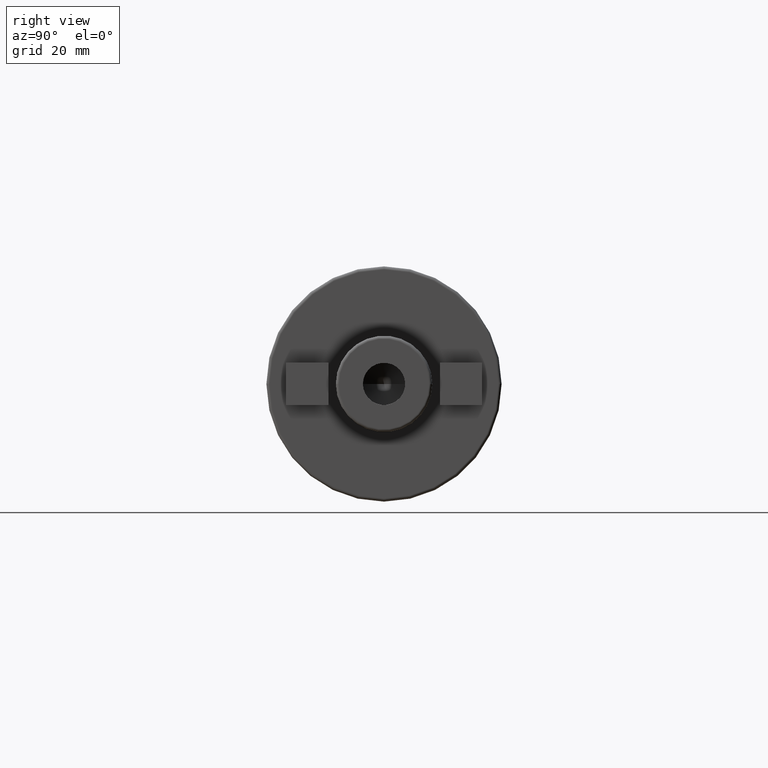
[diagram: clean part render]
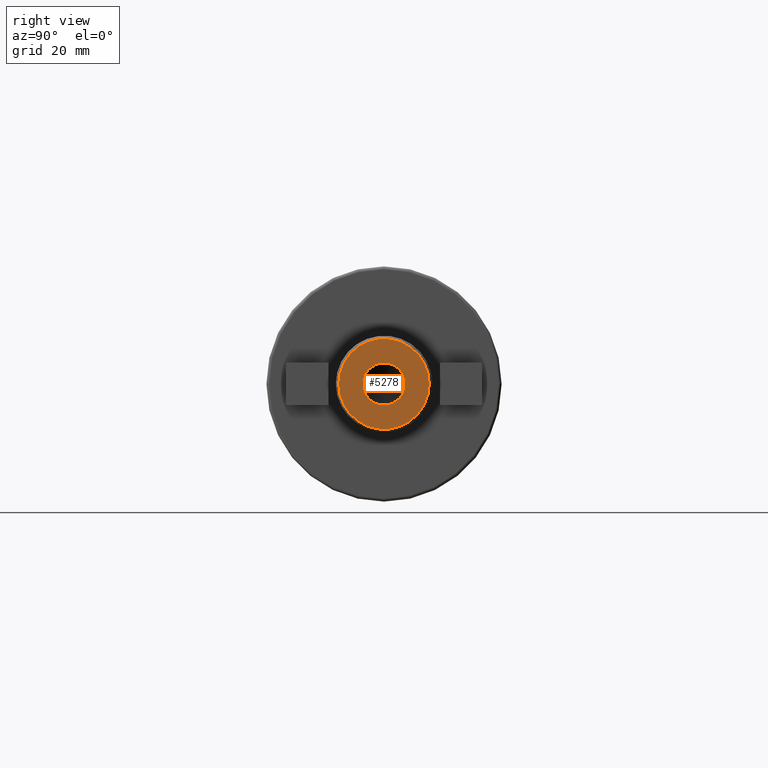
[diagram: same view with one face highlighted and labeled with its STEP entity id]
A machine part, right view. The second image highlights one B-rep face of the part: STEP entity #5278.
In plain terms, the highlighted planar face has unit normal (1, 0, 0).
Its self-contained STEP definition (entity closure, byte-faithful):
#1649=CARTESIAN_POINT('',(1.84E2,0.E0,0.E0));
#1650=DIRECTION('',(-1.E0,0.E0,0.E0));
#1651=DIRECTION('',(0.E0,1.E0,0.E0));
#1652=AXIS2_PLACEMENT_3D('',#1649,#1650,#1651);
#1654=CARTESIAN_POINT('',(1.84E2,0.E0,0.E0));
#1655=DIRECTION('',(-1.E0,0.E0,0.E0));
#1656=DIRECTION('',(0.E0,-1.E0,0.E0));
#1657=AXIS2_PLACEMENT_3D('',#1654,#1655,#1656);
#1659=CARTESIAN_POINT('',(1.84E2,0.E0,0.E0));
#1660=DIRECTION('',(1.E0,0.E0,0.E0));
#1661=DIRECTION('',(0.E0,-1.E0,0.E0));
#1662=AXIS2_PLACEMENT_3D('',#1659,#1660,#1661);
#1664=CARTESIAN_POINT('',(1.84E2,0.E0,0.E0));
#1665=DIRECTION('',(1.E0,0.E0,0.E0));
#1666=DIRECTION('',(0.E0,1.E0,0.E0));
#1667=AXIS2_PLACEMENT_3D('',#1664,#1665,#1666);
#3279=CARTESIAN_POINT('',(1.84E2,1.5E1,0.E0));
#3280=CARTESIAN_POINT('',(1.84E2,-1.5E1,0.E0));
#3281=VERTEX_POINT('',#3279);
#3282=VERTEX_POINT('',#3280);
#3321=CARTESIAN_POINT('',(1.84E2,-7.E0,0.E0));
#3322=CARTESIAN_POINT('',(1.84E2,7.E0,0.E0));
#3323=VERTEX_POINT('',#3321);
#3324=VERTEX_POINT('',#3322);
#5263=CARTESIAN_POINT('',(1.84E2,0.E0,0.E0));
#5264=DIRECTION('',(1.E0,0.E0,0.E0));
#5265=DIRECTION('',(0.E0,-1.E0,0.E0));
#5266=AXIS2_PLACEMENT_3D('',#5263,#5264,#5265);
#5267=PLANE('',#5266);
#5268=ORIENTED_EDGE('',*,*,#5245,.T.);
#5269=ORIENTED_EDGE('',*,*,#5230,.T.);
#5270=EDGE_LOOP('',(#5268,#5269));
#5271=FACE_OUTER_BOUND('',#5270,.F.);
#5273=ORIENTED_EDGE('',*,*,#5272,.T.);
#5275=ORIENTED_EDGE('',*,*,#5274,.T.);
#5276=EDGE_LOOP('',(#5273,#5275));
#5277=FACE_BOUND('',#5276,.F.);
#5278=ADVANCED_FACE('',(#5271,#5277),#5267,.T.);
#1653=CIRCLE('',#1652,1.5E1);
#1658=CIRCLE('',#1657,1.5E1);
#1663=CIRCLE('',#1662,7.E0);
#1668=CIRCLE('',#1667,7.E0);
#5230=EDGE_CURVE('',#3282,#3281,#1658,.T.);
#5245=EDGE_CURVE('',#3281,#3282,#1653,.T.);
#5272=EDGE_CURVE('',#3323,#3324,#1663,.T.);
#5274=EDGE_CURVE('',#3324,#3323,#1668,.T.);